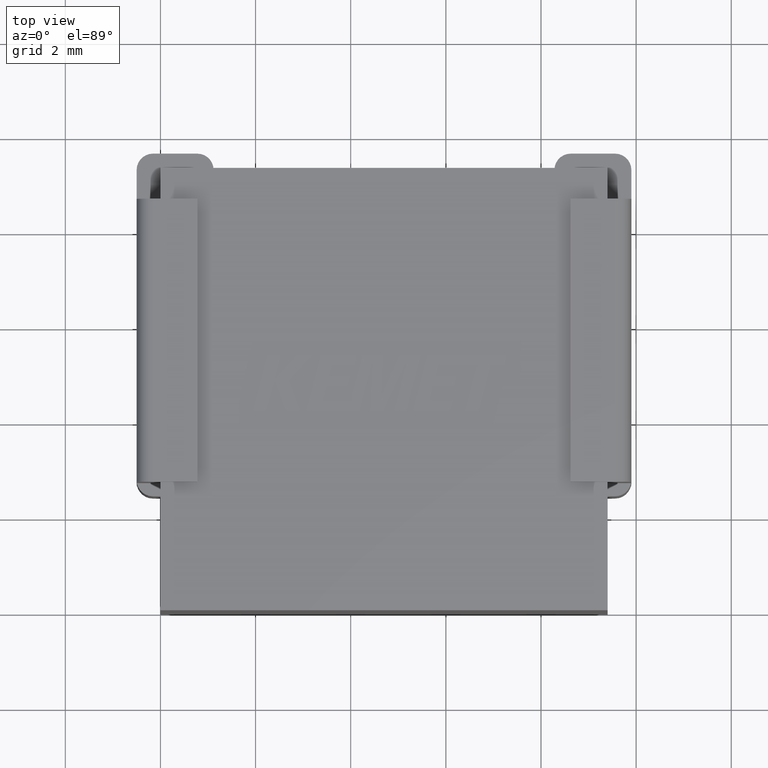
[diagram: clean part render]
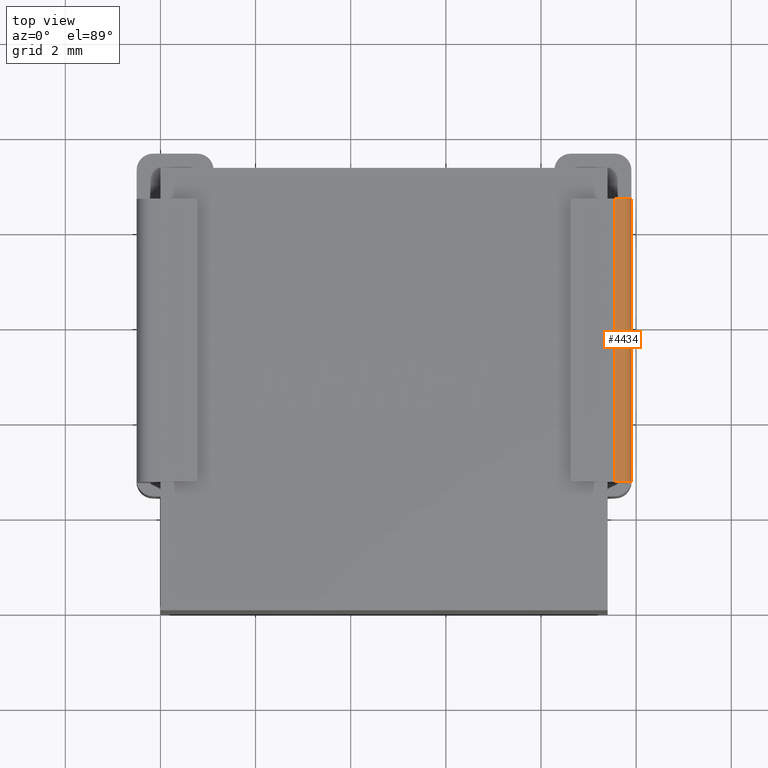
[diagram: same view with one face highlighted and labeled with its STEP entity id]
A machine part, top view. The second image highlights one B-rep face of the part: STEP entity #4434.
In plain terms, the highlighted cylindrical surface (edge-blend (fillet) strip) has radius 0.342 mm, axis along (0, -1, 0).
Its self-contained STEP definition (entity closure, byte-faithful):
#47 = LINE ( 'NONE', #1473, #582 ) ;
#105 = LINE ( 'NONE', #2937, #3220 ) ;
#137 = AXIS2_PLACEMENT_3D ( 'NONE', #645, #2494, #1395 ) ;
#161 = CYLINDRICAL_SURFACE ( 'NONE', #137, 0.3419999999999999152 ) ;
#205 = EDGE_CURVE ( 'NONE', #3008, #3839, #4126, .T. ) ;
#438 = ORIENTED_EDGE ( 'NONE', *, *, #560, .F. ) ;
#543 = CARTESIAN_POINT ( 'NONE',  ( 9.899999999999998579, 2.761989808689432557, -0.1964370622037586167 ) ) ;
#560 = EDGE_CURVE ( 'NONE', #1720, #1041, #2573, .T. ) ;
#582 = VECTOR ( 'NONE', #3416, 1000.000000000000000 ) ;
#641 = CARTESIAN_POINT ( 'NONE',  ( 9.899999999999998579, 2.740838927622128551, -0.1752861811364548883 ) ) ;
#645 = CARTESIAN_POINT ( 'NONE',  ( 9.557999999999998053, 8.650989808689432792, -0.1964370622037586167 ) ) ;
#937 = CARTESIAN_POINT ( 'NONE',  ( 9.557999999999998053, 8.650989808689432792, 0.1455629377962413262 ) ) ;
#1041 = VERTEX_POINT ( 'NONE', #3648 ) ;
#1150 = AXIS2_PLACEMENT_3D ( 'NONE', #2359, #2739, #3458 ) ;
#1151 = EDGE_CURVE ( 'NONE', #3008, #3069, #3367, .T. ) ;
#1189 = DIRECTION ( 'NONE',  ( -0.000000000000000000, 1.000000000000000000, -0.000000000000000000 ) ) ;
#1207 = EDGE_LOOP ( 'NONE', ( #4556, #2350, #2430, #438, #4411 ) ) ;
#1271 = CARTESIAN_POINT ( 'NONE',  ( 9.894147289145694302, 2.698989808689431946, -0.1334370622037569232 ) ) ;
#1395 = DIRECTION ( 'NONE',  ( 0.000000000000000000, 0.000000000000000000, -1.000000000000000000 ) ) ;
#1473 = CARTESIAN_POINT ( 'NONE',  ( 9.899999999999998579, 8.650989808689432792, -0.1964370622037586167 ) ) ;
#1550 = CARTESIAN_POINT ( 'NONE',  ( 9.899999999999998579, 2.761989808689432557, -0.1964370622037586167 ) ) ;
#1720 = VERTEX_POINT ( 'NONE', #937 ) ;
#1941 = FACE_OUTER_BOUND ( 'NONE', #1207, .T. ) ;
#2216 = AXIS2_PLACEMENT_3D ( 'NONE', #3885, #4227, #2824 ) ;
#2331 = CARTESIAN_POINT ( 'NONE',  ( 9.898043504079145904, 2.719778730718136917, -0.1542259842324628927 ) ) ;
#2348 = EDGE_CURVE ( 'NONE', #3069, #1720, #105, .T. ) ;
#2350 = ORIENTED_EDGE ( 'NONE', *, *, #205, .T. ) ;
#2359 = CARTESIAN_POINT ( 'NONE',  ( 9.557999999999998053, 2.698989808689431946, -0.1964370622037586167 ) ) ;
#2416 = CARTESIAN_POINT ( 'NONE',  ( 9.894147289145694302, 2.698989808689431946, -0.1334370622037569232 ) ) ;
#2430 = ORIENTED_EDGE ( 'NONE', *, *, #4333, .F. ) ;
#2448 = CARTESIAN_POINT ( 'NONE',  ( 9.557999999999998053, 2.698989808689431946, 0.1455629377962413262 ) ) ;
#2494 = DIRECTION ( 'NONE',  ( 0.000000000000000000, -1.000000000000000000, 0.000000000000000000 ) ) ;
#2573 = CIRCLE ( 'NONE', #2216, 0.3419999999999999152 ) ;
#2739 = DIRECTION ( 'NONE',  ( 0.000000000000000000, -1.000000000000000000, 0.000000000000000000 ) ) ;
#2824 = DIRECTION ( 'NONE',  ( 0.000000000000000000, 0.000000000000000000, -1.000000000000000000 ) ) ;
#2937 = CARTESIAN_POINT ( 'NONE',  ( 9.557999999999998053, 8.650989808689432792, 0.1455629377962413262 ) ) ;
#3008 = VERTEX_POINT ( 'NONE', #1271 ) ;
#3069 = VERTEX_POINT ( 'NONE', #2448 ) ;
#3220 = VECTOR ( 'NONE', #1189, 1000.000000000000000 ) ;
#3367 = CIRCLE ( 'NONE', #1150, 0.3419999999999999152 ) ;
#3416 = DIRECTION ( 'NONE',  ( 0.000000000000000000, -1.000000000000000000, 0.000000000000000000 ) ) ;
#3458 = DIRECTION ( 'NONE',  ( 0.000000000000000000, 0.000000000000000000, -1.000000000000000000 ) ) ;
#3648 = CARTESIAN_POINT ( 'NONE',  ( 9.899999999999998579, 8.650989808689432792, -0.1964370622037586167 ) ) ;
#3839 = VERTEX_POINT ( 'NONE', #1550 ) ;
#3885 = CARTESIAN_POINT ( 'NONE',  ( 9.557999999999998053, 8.650989808689432792, -0.1964370622037586167 ) ) ;
#4126 =( BOUNDED_CURVE ( )  B_SPLINE_CURVE ( 3, ( #2416, #2331, #641, #543 ),
 .UNSPECIFIED., .F., .T. ) 
 B_SPLINE_CURVE_WITH_KNOTS ( ( 4, 4 ),
 ( 1.385527744345741441, 1.570796326794896780 ),
 .UNSPECIFIED. ) 
 CURVE ( )  GEOMETRIC_REPRESENTATION_ITEM ( )  RATIONAL_B_SPLINE_CURVE ( ( 1.000000000000000000, 0.9971416742081725682, 0.9971416742081725682, 1.000000000000000000 ) ) 
 REPRESENTATION_ITEM ( '' )  );
#4227 = DIRECTION ( 'NONE',  ( -0.000000000000000000, 1.000000000000000000, -0.000000000000000000 ) ) ;
#4333 = EDGE_CURVE ( 'NONE', #1041, #3839, #47, .T. ) ;
#4411 = ORIENTED_EDGE ( 'NONE', *, *, #2348, .F. ) ;
#4434 = ADVANCED_FACE ( 'NONE', ( #1941 ), #161, .T. ) ;
#4556 = ORIENTED_EDGE ( 'NONE', *, *, #1151, .F. ) ;